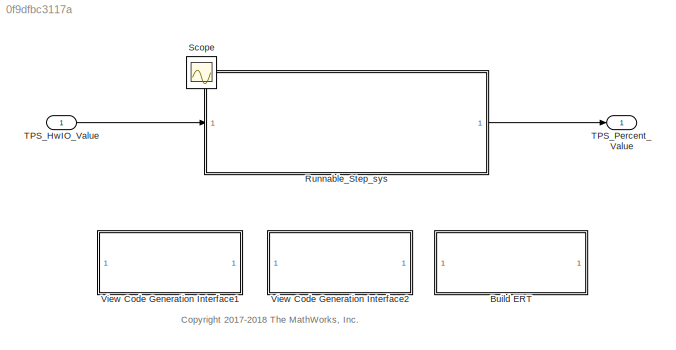
MODEL slx_0f9dfbc3117a
KIND model
CONFIG AbsTol = auto
CONFIG EnableMultiTasking = off
CONFIG FixedStep = 0.005
CONFIG MaxStep = auto
CONFIG MinStep = auto
CONFIG PreLoadFcn = TPSPercent_LkupTbl = Simulink.LookupTable;\nTPSPercent_LkupTbl.Table.DataType = 'single';\nTPSPercent_LkupTbl.Table.Min = [];\nTPSPercent_LkupTbl.Table.Max = [];\nTPSPercent_LkupTbl.Table.Unit = '';\nTPSPercent_LkupTbl.Table.FieldName = 'Table';\nTPSPercent_LkupTbl.Table.Description = '';\nTPSPercent_LkupTbl.Table.Value = ...\n  [0 10 20 30 40 50 60 70 80 90 100];\nTPSPercent_LkupTbl.BreakpointsSpecificati...<+706ch>
CONFIG RelTol = 1e-3
CONFIG SampleTimeConstraint = Unconstrained
CONFIG SolverName = FixedStepDiscrete
CONFIG StartTime = 0.0
CONFIG StopTime = 10.0
BLOCK [SubSystem] Build ERT
  OpenFcn = try\n    if ~exist('rtwdemo_ert', 'dir')\n        disp('Creating working directory rtwdemo_ert')\n        mkdir('rtwdemo_ert')\n    end\n    cd('rtwdemo_ert');\n    rtwbuilddemomodel(bdroot);\n    cd('..');\ncatch myException\n    rethrow(myException);\nend
  PermitHierarchicalResolution = ExplicitOnly
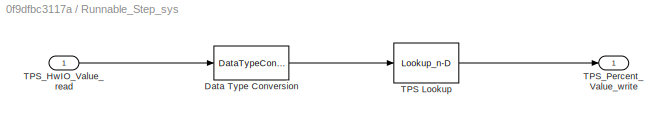
BLOCK [SubSystem] Runnable_Step_sys
  SystemSampleTime = 0.005
  TreatAsAtomicUnit = on
BLOCK [DataTypeConversion] Runnable_Step_sys/Data Type Conversion
  OutDataTypeStr = single
  RndMeth = Floor
  SaturateOnIntegerOverflow = off
BLOCK [Lookup_n-D] Runnable_Step_sys/TPS Lookup
  BreakpointsForDimension1 = TPSPercentBkpt
  BreakpointsForDimension1DataTypeStr = single
  DataSpecification = Lookup table object
  ExtrapMethod = Clip
  IndexSearchMethod = Linear search
  InputPortMap = u0
  InternalRulePriority = Speed
  LookupTableObject = TPSPercent_LkupTbl
  NumberOfTableDimensions = 1
  OutDataTypeStr = single
  RndMeth = Simplest
  Table = TPSPercentTbl
  TableDataTypeStr = single
BLOCK [Inport] Runnable_Step_sys/TPS_HwIO_Value_read
BLOCK [Outport] Runnable_Step_sys/TPS_Percent_Value_write
  VectorParamsAs1DForOutWhenUnconnected = off
BLOCK [Scope] Scope
  Floating = off
  IOType = viewer
  NumInputPorts = 1
  ScopeSpecificationString = Simulink.scopes.TimeScopeBlockCfg('CurrentConfiguration', extmgr.ConfigurationSet(extmgr.Configuration('Core','General UI',true),extmgr.Configuration('Core','Source UI',true),extmgr.Configuration('Sources','WiredSimulink',true),extmgr.Configuration('Visuals','Time Domain',true,'SerializedDisplays',{struct('MinYLimReal','6.8375','MaxYLimReal','108.4625','YLabelReal','','MinYLimMag','6.8375','MaxYLi...<+1365ch>
BLOCK [Inport] TPS_HwIO_Value
  OutDataTypeStr = uint16
  PortDimensions = 1
  SamplingMode = Sample based
  SignalType = real
BLOCK [Outport] TPS_Percent_Value
  OutDataTypeStr = single
  PortDimensions = 1
  SamplingMode = Sample based
  SignalType = real
  VectorParamsAs1DForOutWhenUnconnected = off
BLOCK [SubSystem] View Code Generation Interface1
  OpenFcn = autosar_ui_launch(bdroot)
  PermitHierarchicalResolution = ExplicitOnly
BLOCK [SubSystem] View Code Generation Interface2
  OpenFcn = dlg = slCfgPrmDlg(bdroot,'Open');\ndlg = slCfgPrmDlg(bdroot,'TurnToPage',[message('RTW:configSet:configSetCodeGen').getString,'/',message('RTW:autosar:autosarCodeGenOptions').getString]); \nclear dlg;
  PermitHierarchicalResolution = ExplicitOnly
ANNOTATION (root): <copyright redacted>
LINE Runnable_Step_sys/Data Type Conversion:1 -> Runnable_Step_sys/TPS Lookup:1
LINE Runnable_Step_sys/TPS Lookup:1 -> Runnable_Step_sys/TPS_Percent_Value_write:1
LINE Runnable_Step_sys/TPS_HwIO_Value_read:1 -> Runnable_Step_sys/Data Type Conversion:1
LINE Runnable_Step_sys:1 -> TPS_Percent_Value:1
LINE TPS_HwIO_Value:1 -> Runnable_Step_sys:1
